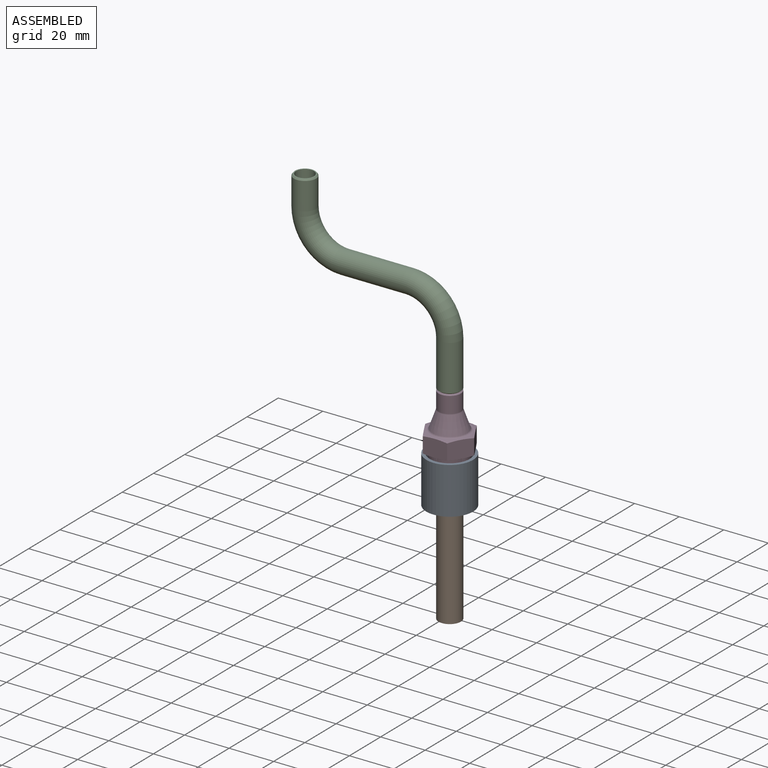
[diagram: assembled view]
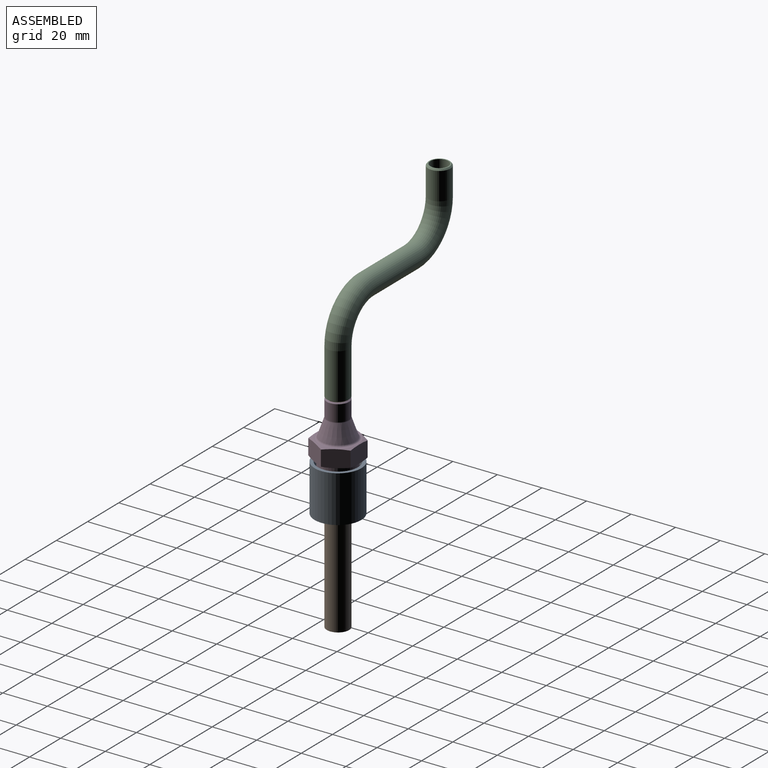
[diagram: assembled view, second angle]
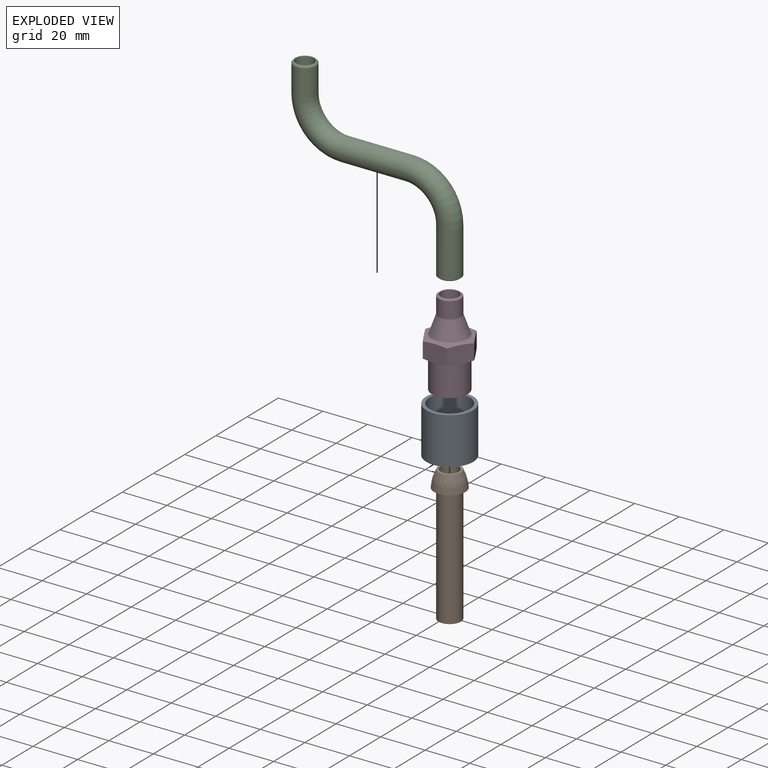
[diagram: exploded view]
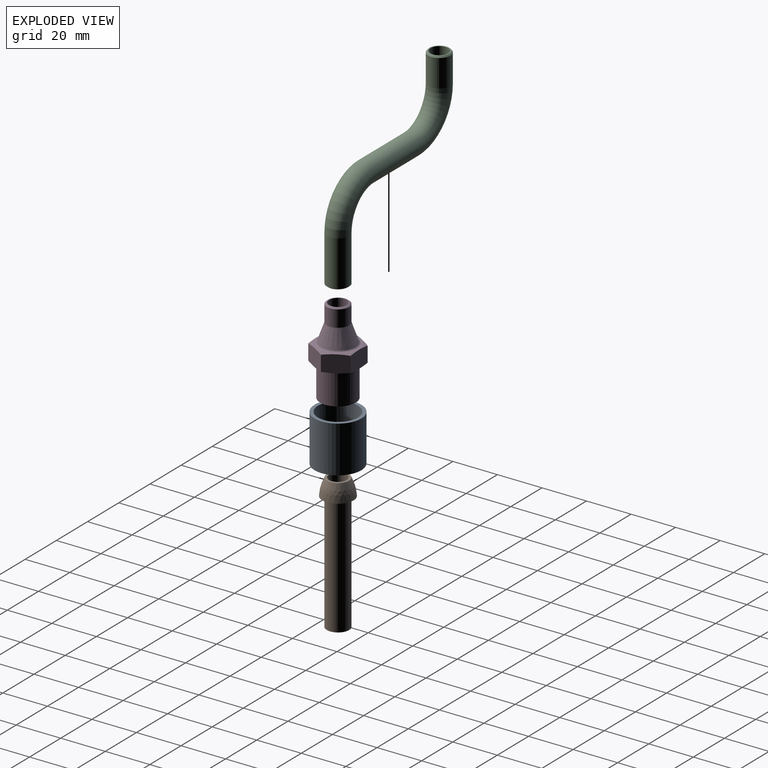
[diagram: exploded view, second angle]
ASSEMBLY  parts=4 mates=6
PART A: 6 faces, bbox 21x21x21 mm
  f0: plane 21x21mm, normal (-1,0,0), area 233.3mm2, adj f1,f5
  f1: cylinder r=6mm len=12mm, axis (-1,0,0), area 263.9mm2, adj f0,f2
  f2: plane 18x18mm, normal (1,0,0), area 141.4mm2, adj f1,f3
  f3: cylinder r=9mm len=18mm, axis (-1,0,0), area 791.7mm2, adj f2,f4
  f4: plane 21x21mm, normal (1,0,0), area 91.9mm2, adj f3,f5
  f5: cylinder r=10.5mm len=21mm, axis (-1,0,0), area 1385.4mm2, adj f0,f4
PART B: 6 faces, bbox 60.6x14x14 mm
  f0: plane 10x10mm, normal (-1,0,0), area 28.3mm2, adj f1,f5
  f1: cylinder r=4mm len=60.6mm, axis (-1,0,0), area 1523.2mm2, adj f0,f2
  f2: plane 10x10mm, normal (1,0,0), area 28.3mm2, adj f1,f3
  f3: revolved ~14x14mm, area 305mm2, adj f2,f4
  f4: plane 14x14mm, normal (-1,0,0), area 75.4mm2, adj f3,f5
  f5: cylinder r=5mm len=53.14mm, axis (-1,0,0), area 1669.5mm2, adj f0,f4
PART C: 14 faces, bbox 78.8x10x70 mm
  f0: cylinder r=4mm len=21mm, axis (0,0,1), area 527.8mm2, adj f1,f5
  f1: torus R=18mm, axis (0,-1,0), area 710.6mm2, adj f0,f2
  f2: cylinder r=4mm len=29mm, axis (-1,0,0), area 728.8mm2, adj f1,f3
  f3: torus R=18mm, axis (0,1,0), area 710.6mm2, adj f2,f4
  f4: cylinder r=4mm len=13mm, axis (0,0,1), area 326.7mm2, adj f3,f6
  f5: plane 8.7x8.7mm, normal (0,0,-1), area 9.1mm2, adj f0,f12
  f6: plane 9x9mm, normal (0,0,1), area 13.4mm2, adj f4,f13
  f7: cylinder r=5mm len=20.5mm, axis (0,0,1), area 644mm2, adj f8,f12
  f8: torus R=18mm, axis (0,-1,0), area 888.3mm2, adj f7,f9
  f9: cylinder r=5mm len=29mm, axis (-1,0,0), area 911.1mm2, adj f8,f10
  f10: torus R=18mm, axis (0,1,0), area 888.3mm2, adj f9,f11
  f11: cylinder r=5mm len=12.35mm, axis (0,0,1), area 387.9mm2, adj f10,f13
  f12: cone r=5mm half-angle=52.5deg, axis (0,0,1), area 24.1mm2, adj f5,f7
  f13: cone r=4.5mm half-angle=37.5deg, axis (0,0,-1), area 24.5mm2, adj f6,f11
PART D: 20 faces, bbox 38.5x21.9x21.9 mm
  f0: plane 18x18mm, normal (1,0,0), area 16.3mm2, adj f11,f12
  f1: plane 18x18mm, normal (-1,0,0), area 53.4mm2, adj f6,f13
  f2: cylinder r=4mm len=27.3mm, axis (-1,0,0), area 686.2mm2, adj f3,f8
  f3: plane 8.7x8.7mm, normal (1,0,0), area 9.1mm2, adj f2,f9
  f4: cylinder r=5mm len=10mm, axis (-1,0,0), area 230.2mm2, adj f9,f10
  f5: cone r=8mm half-angle=19.4deg, axis (-1,0,0), area 327.7mm2, adj f10,f11
  f6: cylinder r=8mm len=16mm, axis (-1,0,0), area 703.7mm2, adj f1,f7
  f7: plane 16x16mm, normal (-1,0,0), area 47.1mm2, adj f6,f8
  f8: cone r=4mm half-angle=15deg, axis (-1,0,0), area 400.6mm2, adj f2,f7
  f9: cone r=5mm half-angle=52.5deg, axis (-1,0,0), area 24.1mm2, adj f3,f4
  f10: torus R=6mm, axis (-1,0,0), area 10.7mm2, adj f4,f5
  f11: torus R=8.71mm, axis (1,0,0), area 63.2mm2, adj f0,f5
  f12: cone r=9mm half-angle=75deg, axis (-1,0,0), area 60.2mm2, adj f0,f14,f15,f16,f17,f18,f19
  f13: cone r=9mm half-angle=75deg, axis (1,0,0), area 60.2mm2, adj f1,f14,f15,f16,f17,f18,f19
  f14: plane 9.5x7.73mm, normal (0,-0.5,-0.87), area 81.9mm2, adj f12,f13,f15,f19
  f15: plane 10.97x7.73mm, normal (0,-1,0), area 81.9mm2, adj f12,f13,f14,f16
  f16: plane 9.5x7.73mm, normal (0,-0.5,0.87), area 81.9mm2, adj f12,f13,f15,f17
  f17: plane 9.5x7.73mm, normal (0,0.5,0.87), area 81.9mm2, adj f12,f13,f16,f18
  f18: plane 10.97x7.73mm, normal (0,1,0), area 81.9mm2, adj f12,f13,f17,f19
  f19: plane 9.5x7.73mm, normal (0,0.5,-0.87), area 81.9mm2, adj f12,f13,f14,f18
PLACE A rot(axis=(0.19,-0.96,0.19),92.2deg) t=(-72.54,-86.3,-63.31)mm
PLACE B rot(axis=(0,-1,0),90deg) t=(-72.54,-86.3,-48.84)mm
PLACE C t=(-72.54,-86.3,-16.35)mm
PLACE D rot(axis=(-0.71,0,-0.71),180deg) t=(-72.54,-86.3,-16.35)mm
MATE cylindrical B.f1 <-> A.f1  axis (0,0,-1) through (-72.54,-86.3,-82.88)mm
MATE planar B.f1 <-> D.f2  axis (0,0,-1) through (-72.54,-86.3,-56.31)mm
MATE cylindrical B.f1 <-> D.f2  axis (0,0,-1) through (-72.54,-86.3,-82.88)mm
MATE planar C.f7 <-> D.f2  axis (0,0,-1) through (-72.54,-86.3,-16.35)mm
MATE cylindrical D.f2 <-> C.f12  axis (0,0,-1) through (-72.54,-86.3,-20.51)mm
MATE planar A.f1 <-> B.f1  axis (0,0,1) through (-72.54,-86.3,-56.31)mm
